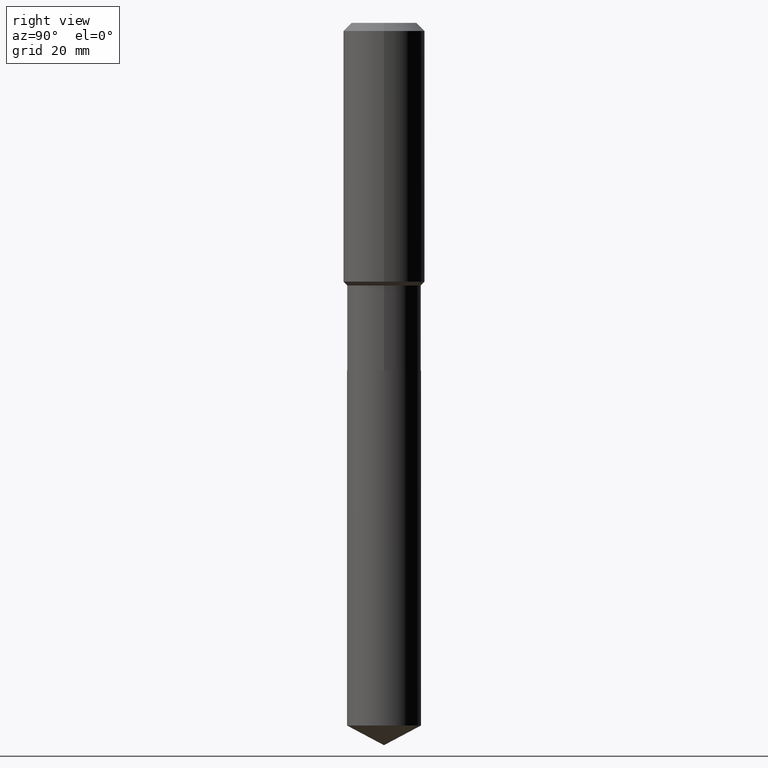
[diagram: clean part render]
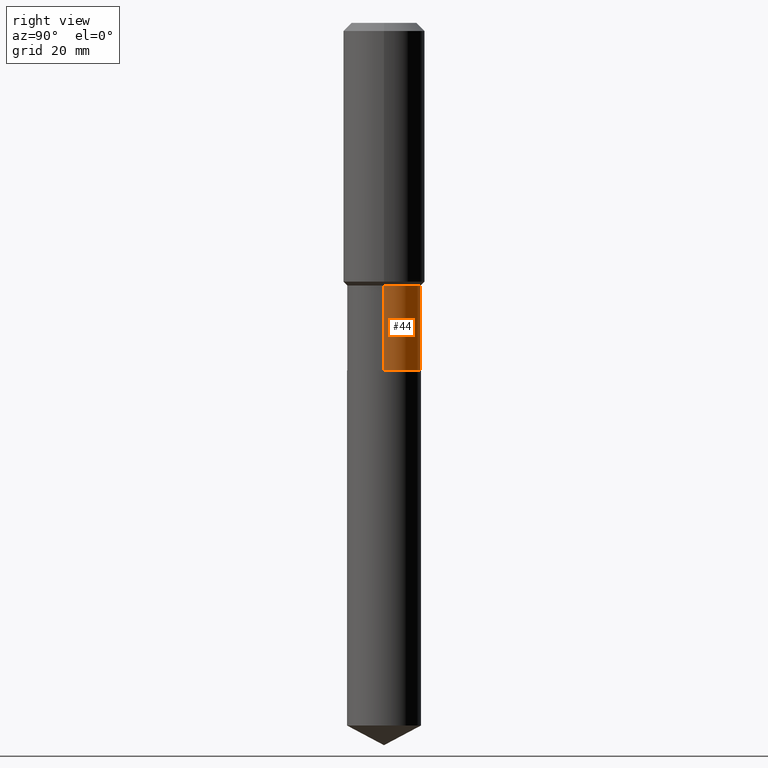
[diagram: same view with one face highlighted and labeled with its STEP entity id]
A machine part, right view. The second image highlights one B-rep face of the part: STEP entity #44.
In plain terms, the highlighted cylindrical surface (partial cylindrical patch) has radius 6.35 mm, axis along (-0, 0, 1).
Its self-contained STEP definition (entity closure, byte-faithful):
#30 = CARTESIAN_POINT ( 'NONE',  ( 5.745628960131976631E-29, -8.203235405611967914E-15, -2.349499999999999478 ) ) ;
#42 = AXIS2_PLACEMENT_3D ( 'NONE', #425, #468, #351 ) ;
#44 = ADVANCED_FACE ( 'NONE', ( #196 ), #163, .T. ) ;
#61 = VERTEX_POINT ( 'NONE', #120 ) ;
#64 = CIRCLE ( 'NONE', #413, 0.2500000000000000000 ) ;
#84 = CIRCLE ( 'NONE', #42, 0.2499999999999999167 ) ;
#105 = CARTESIAN_POINT ( 'NONE',  ( -0.2500000000000000555, -5.423950551629025389E-15, -2.349499999999999478 ) ) ;
#119 = EDGE_CURVE ( 'NONE', #61, #360, #84, .T. ) ;
#120 = CARTESIAN_POINT ( 'NONE',  ( 0.2499999999999999167, -7.943120045868147316E-15, -1.774999999999999467 ) ) ;
#126 = EDGE_CURVE ( 'NONE', #403, #61, #169, .T. ) ;
#141 = AXIS2_PLACEMENT_3D ( 'NONE', #455, #487, #415 ) ;
#146 = DIRECTION ( 'NONE',  ( -2.445468806185136877E-29, 3.491481338843145188E-15, 1.000000000000000000 ) ) ;
#163 = CYLINDRICAL_SURFACE ( 'NONE', #141, 0.2499999999999999722 ) ;
#169 = LINE ( 'NONE', #315, #171 ) ;
#171 = VECTOR ( 'NONE', #464, 39.37007874015748143 ) ;
#196 = FACE_OUTER_BOUND ( 'NONE', #301, .T. ) ;
#255 = CARTESIAN_POINT ( 'NONE',  ( 0.2500000000000000000, -9.948976075033534591E-15, -2.349499999999999478 ) ) ;
#259 = DIRECTION ( 'NONE',  ( -2.445468806185136597E-29, 3.491481338843145583E-15, 1.000000000000000000 ) ) ;
#275 = VECTOR ( 'NONE', #146, 39.37007874015748143 ) ;
#292 = ORIENTED_EDGE ( 'NONE', *, *, #119, .F. ) ;
#296 = LINE ( 'NONE', #443, #275 ) ;
#301 = EDGE_LOOP ( 'NONE', ( #439, #475, #292, #362 ) ) ;
#315 = CARTESIAN_POINT ( 'NONE',  ( 0.2499999999999999722, -1.745740669421566480E-15, 1.219044193948983808E-29 ) ) ;
#329 = EDGE_CURVE ( 'NONE', #392, #360, #296, .T. ) ;
#339 = DIRECTION ( 'NONE',  ( 1.000000000000000000, -6.982962677686266711E-15, 0.000000000000000000 ) ) ;
#351 = DIRECTION ( 'NONE',  ( 1.000000000000000000, -6.982962677686265133E-15, 0.000000000000000000 ) ) ;
#360 = VERTEX_POINT ( 'NONE', #378 ) ;
#362 = ORIENTED_EDGE ( 'NONE', *, *, #126, .F. ) ;
#373 = EDGE_CURVE ( 'NONE', #403, #392, #64, .T. ) ;
#378 = CARTESIAN_POINT ( 'NONE',  ( -0.2499999999999999167, -5.423950551629025389E-15, -1.774999999999999467 ) ) ;
#392 = VERTEX_POINT ( 'NONE', #105 ) ;
#403 = VERTEX_POINT ( 'NONE', #255 ) ;
#413 = AXIS2_PLACEMENT_3D ( 'NONE', #30, #259, #339 ) ;
#415 = DIRECTION ( 'NONE',  ( 1.000000000000000000, -6.982962677686266711E-15, 4.876176775795935793E-29 ) ) ;
#425 = CARTESIAN_POINT ( 'NONE',  ( 4.340707130978616226E-29, -6.197379376446582216E-15, -1.774999999999999467 ) ) ;
#439 = ORIENTED_EDGE ( 'NONE', *, *, #373, .T. ) ;
#443 = CARTESIAN_POINT ( 'NONE',  ( -0.2499999999999999722, 1.776356839400250267E-15, -1.229733772563726305E-29 ) ) ;
#455 = CARTESIAN_POINT ( 'NONE',  ( 0.000000000000000000, 0.000000000000000000, 0.000000000000000000 ) ) ;
#464 = DIRECTION ( 'NONE',  ( -2.445468806185136877E-29, 3.491481338843145188E-15, 1.000000000000000000 ) ) ;
#468 = DIRECTION ( 'NONE',  ( -2.445468806185136597E-29, 3.491481338843145583E-15, 1.000000000000000000 ) ) ;
#475 = ORIENTED_EDGE ( 'NONE', *, *, #329, .T. ) ;
#487 = DIRECTION ( 'NONE',  ( -2.445468806185136597E-29, 3.491481338843145583E-15, 1.000000000000000000 ) ) ;